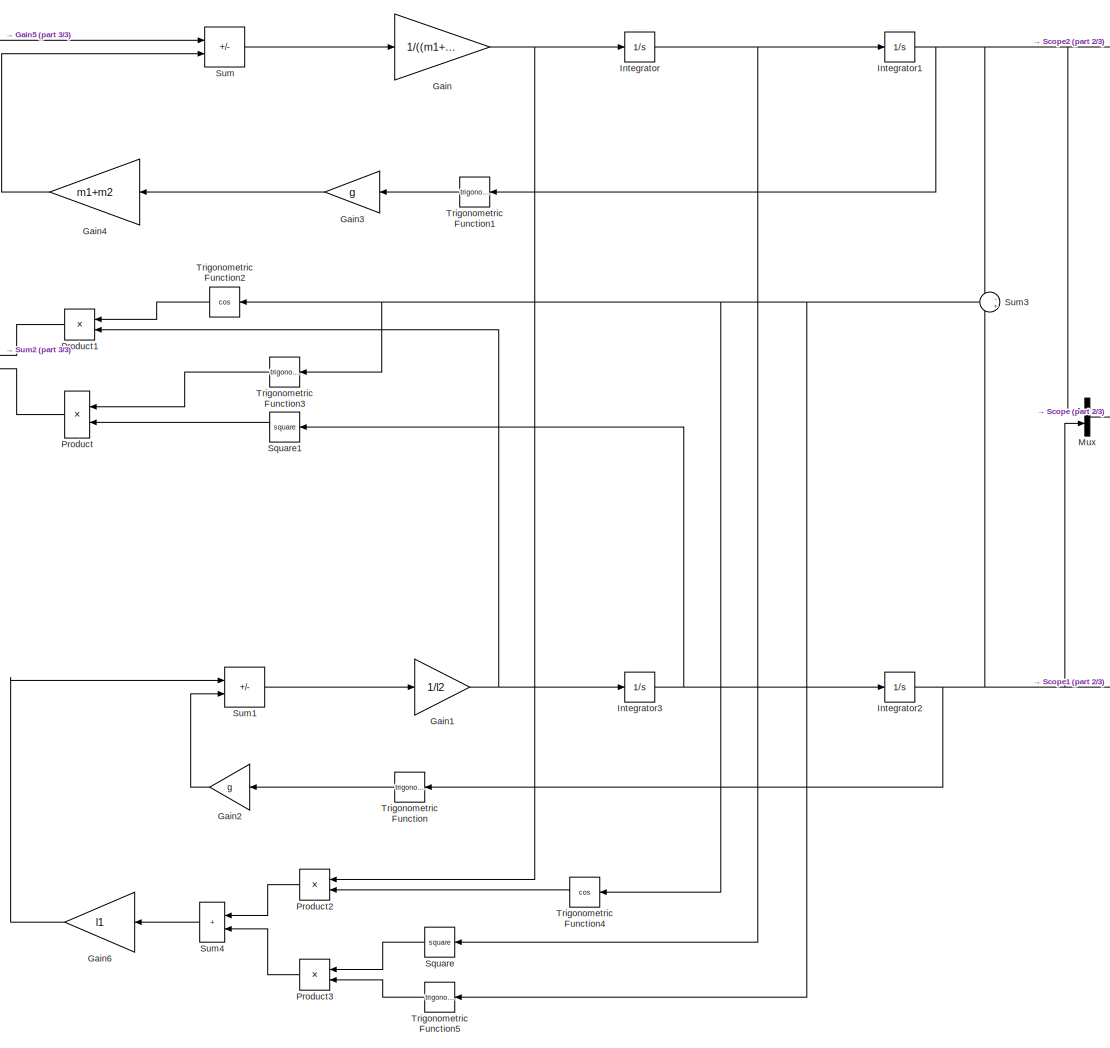
[diagram: root canvas - part 1/3, most of the canvas]
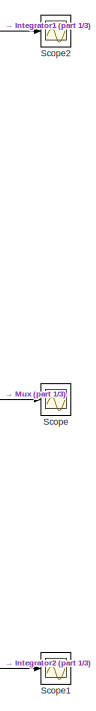
[diagram: root canvas - part 2/3, middle right region]
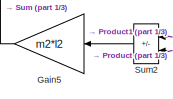
[diagram: root canvas - part 3/3, middle left region]
MODEL slx_1e99fcf41fac
KIND model
CONFIG AbsTol = auto
CONFIG EnableMultiTasking = off
CONFIG FixedStep = auto
CONFIG MaxStep = 0.01
CONFIG MinStep = auto
CONFIG RelTol = 1e-3
CONFIG SampleTimeConstraint = Unconstrained
CONFIG SolverName = VariableStepAuto
CONFIG StartTime = 0.0
CONFIG StopTime = 20
BLOCK [Gain] Gain
  Gain = 1/((m1+m2)*l1)
BLOCK [Gain] Gain1
  Gain = 1/l2
BLOCK [Gain] Gain2
  Gain = g
  NameLocation = top
BLOCK [Gain] Gain3
  Gain = g
  NameLocation = top
BLOCK [Gain] Gain4
  Gain = m1+m2
  NameLocation = top
BLOCK [Gain] Gain5
  Gain = m2*l2
  NameLocation = top
BLOCK [Gain] Gain6
  Gain = l1
  NameLocation = top
BLOCK [Integrator] Integrator
BLOCK [Integrator] Integrator1
BLOCK [Integrator] Integrator2
  InitialCondition = (35*pi)/180
BLOCK [Integrator] Integrator3
BLOCK [Mux] Mux
  DisplayOption = bar
  Inputs = 2
BLOCK [Product] Product
  NameLocation = top
BLOCK [Product] Product1
  NameLocation = top
BLOCK [Product] Product2
  NameLocation = top
BLOCK [Product] Product3
  NameLocation = top
BLOCK [Scope] Scope
  Floating = off
  NumInputPorts = 1
  ScopeSpecificationString = Simulink.scopes.TimeScopeBlockCfg('CurrentConfiguration', extmgr.ConfigurationSet(extmgr.Configuration('Core','General UI',true),extmgr.Configuration('Core','Source UI',true),extmgr.Configuration('Sources','WiredSimulink',true),extmgr.Configuration('Visuals','Time Domain',true,'SerializedDisplays',{struct('MinYLimReal','-0.76297','MaxYLimReal','0.76351','YLabelReal','','MinYLimMag','0.00000','MaxY...<+1345ch>
BLOCK [Scope] Scope1
  Floating = off
  NumInputPorts = 1
  ScopeSpecificationString = Simulink.scopes.TimeScopeBlockCfg('CurrentConfiguration', extmgr.ConfigurationSet(extmgr.Configuration('Core','General UI',true),extmgr.Configuration('Core','Source UI',true),extmgr.Configuration('Sources','WiredSimulink',true,'DataLoggingVariableName','ScopeData1'),extmgr.Configuration('Visuals','Time Domain',true),extmgr.Configuration('Tools','Plot Navigation',true),extmgr.Configuration('Tools',...<+40ch>
BLOCK [Scope] Scope2
  Floating = off
  NumInputPorts = 1
  ScopeSpecificationString = Simulink.scopes.TimeScopeBlockCfg('CurrentConfiguration', extmgr.ConfigurationSet(extmgr.Configuration('Core','General UI',true),extmgr.Configuration('Core','Source UI',true),extmgr.Configuration('Sources','WiredSimulink',true,'DataLoggingVariableName','ScopeData2'),extmgr.Configuration('Visuals','Time Domain',true),extmgr.Configuration('Tools','Plot Navigation',true),extmgr.Configuration('Tools',...<+40ch>
BLOCK [Math] Square
  NameLocation = top
  Operator = square
BLOCK [Math] Square1
  NameLocation = top
  Operator = square
BLOCK [Sum] Sum
  IconShape = rectangular
  Inputs = --
BLOCK [Sum] Sum1
  IconShape = rectangular
  Inputs = --
BLOCK [Sum] Sum2
  IconShape = rectangular
  Inputs = +-
  NameLocation = top
BLOCK [Sum] Sum3
  Inputs = -+
  NameLocation = top
BLOCK [Sum] Sum4
  IconShape = rectangular
  NameLocation = top
BLOCK [Trigonometry] Trigonometric Function
  NameLocation = top
BLOCK [Trigonometry] Trigonometric Function1
  NameLocation = top
BLOCK [Trigonometry] Trigonometric Function2
  NameLocation = top
  Operator = cos
BLOCK [Trigonometry] Trigonometric Function3
  NameLocation = top
BLOCK [Trigonometry] Trigonometric Function4
  NameLocation = top
  Operator = cos
BLOCK [Trigonometry] Trigonometric Function5
  NameLocation = top
NET Gain1:1 -> Integrator3:1, Product1:2
LINE Gain2:1 -> Sum1:2
LINE Gain3:1 -> Gain4:1
LINE Gain4:1 -> Sum:2
LINE Gain5:1 -> Sum:1
LINE Gain6:1 -> Sum1:1
NET Gain:1 -> Integrator:1, Product2:1
NET Integrator1:1 -> Mux:1, Scope2:1, Sum3:1, Trigonometric Function1:1
NET Integrator2:1 -> Mux:2, Scope1:1, Sum3:2, Trigonometric Function:1
NET Integrator3:1 -> Integrator2:1, Square1:1
NET Integrator:1 -> Integrator1:1, Square:1
LINE Mux:1 -> Scope:1
LINE Product1:1 -> Sum2:1
LINE Product2:1 -> Sum4:1
LINE Product3:1 -> Sum4:2
LINE Product:1 -> Sum2:2
LINE Square1:1 -> Product:2
LINE Square:1 -> Product3:1
LINE Sum1:1 -> Gain1:1
LINE Sum2:1 -> Gain5:1
NET Sum3:1 -> Trigonometric Function2:1, Trigonometric Function3:1, Trigonometric Function4:1, Trigonometric Function5:1
LINE Sum4:1 -> Gain6:1
LINE Sum:1 -> Gain:1
LINE Trigonometric Function1:1 -> Gain3:1
LINE Trigonometric Function2:1 -> Product1:1
LINE Trigonometric Function3:1 -> Product:1
LINE Trigonometric Function4:1 -> Product2:2
LINE Trigonometric Function5:1 -> Product3:2
LINE Trigonometric Function:1 -> Gain2:1
note: NET lines group one-source signal fan-out (src -> all destinations, sorted); 1:1 wires keep LINE
